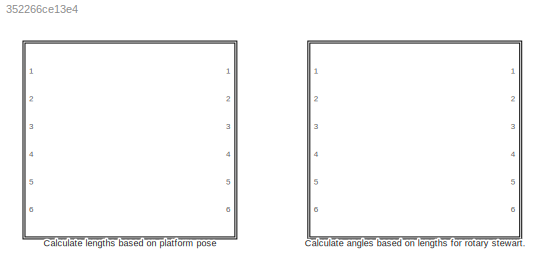
MODEL slx_352266ce13e4
KIND model
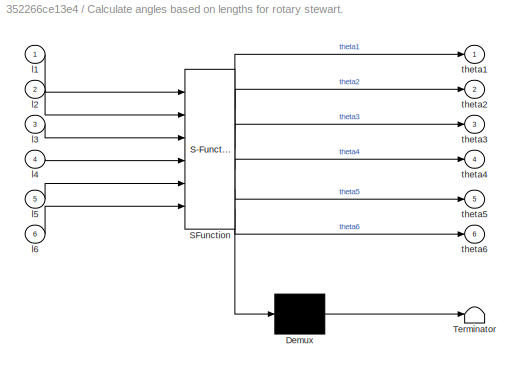
BLOCK [SubSystem]  Calculate angles based on lengths for rotary stewart.
  ErrorFcn = Stateflow.Translate.translate
  PermitHierarchicalResolution = ExplicitOnly
  Ports = [6, 6]
  RequestExecContextInheritance = off
  SFBlockType = MATLAB Function
  TreatAsAtomicUnit = on
BLOCK [Demux]  Calculate angles based on lengths for rotary stewart./ Demux 
  Outputs = 1
  Ports = [1, 1]
BLOCK [S-Function]  Calculate angles based on lengths for rotary stewart./ SFunction 
  EnableBusSupport = off
  FunctionName = sf_sfun
  PortCounts = [6 7]
  Ports = [6, 7]
  Tag = Stateflow S-Function userdefined_funtion_test 2
BLOCK [Terminator]  Calculate angles based on lengths for rotary stewart./ Terminator 
BLOCK [Inport]  Calculate angles based on lengths for rotary stewart./l1
  IconDisplay = Port number
BLOCK [Inport]  Calculate angles based on lengths for rotary stewart./l2
  IconDisplay = Port number
  Port = 2
BLOCK [Inport]  Calculate angles based on lengths for rotary stewart./l3
  IconDisplay = Port number
  Port = 3
BLOCK [Inport]  Calculate angles based on lengths for rotary stewart./l4
  IconDisplay = Port number
  Port = 4
BLOCK [Inport]  Calculate angles based on lengths for rotary stewart./l5
  IconDisplay = Port number
  Port = 5
BLOCK [Inport]  Calculate angles based on lengths for rotary stewart./l6
  IconDisplay = Port number
  Port = 6
BLOCK [Outport]  Calculate angles based on lengths for rotary stewart./theta1
  IconDisplay = Port number
BLOCK [Outport]  Calculate angles based on lengths for rotary stewart./theta2
  IconDisplay = Port number
  Port = 2
BLOCK [Outport]  Calculate angles based on lengths for rotary stewart./theta3
  IconDisplay = Port number
  Port = 3
BLOCK [Outport]  Calculate angles based on lengths for rotary stewart./theta4
  IconDisplay = Port number
  Port = 4
BLOCK [Outport]  Calculate angles based on lengths for rotary stewart./theta5
  IconDisplay = Port number
  Port = 5
BLOCK [Outport]  Calculate angles based on lengths for rotary stewart./theta6
  IconDisplay = Port number
  Port = 6
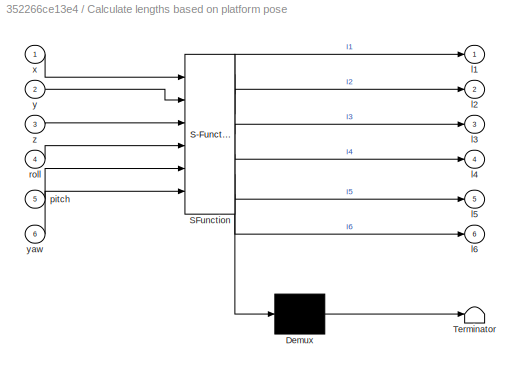
BLOCK [SubSystem] Calculate lengths based on platform pose
  ErrorFcn = Stateflow.Translate.translate
  PermitHierarchicalResolution = ExplicitOnly
  Ports = [6, 6]
  RequestExecContextInheritance = off
  SFBlockType = MATLAB Function
  TreatAsAtomicUnit = on
BLOCK [Demux] Calculate lengths based on platform pose/ Demux 
  Outputs = 1
  Ports = [1, 1]
BLOCK [S-Function] Calculate lengths based on platform pose/ SFunction 
  EnableBusSupport = off
  FunctionName = sf_sfun
  PortCounts = [6 7]
  Ports = [6, 7]
  Tag = Stateflow S-Function userdefined_funtion_test 1
BLOCK [Terminator] Calculate lengths based on platform pose/ Terminator 
BLOCK [Outport] Calculate lengths based on platform pose/l1
  IconDisplay = Port number
BLOCK [Outport] Calculate lengths based on platform pose/l2
  IconDisplay = Port number
  Port = 2
BLOCK [Outport] Calculate lengths based on platform pose/l3
  IconDisplay = Port number
  Port = 3
BLOCK [Outport] Calculate lengths based on platform pose/l4
  IconDisplay = Port number
  Port = 4
BLOCK [Outport] Calculate lengths based on platform pose/l5
  IconDisplay = Port number
  Port = 5
BLOCK [Outport] Calculate lengths based on platform pose/l6
  IconDisplay = Port number
  Port = 6
BLOCK [Inport] Calculate lengths based on platform pose/pitch
  IconDisplay = Port number
  Port = 5
BLOCK [Inport] Calculate lengths based on platform pose/roll
  IconDisplay = Port number
  Port = 4
BLOCK [Inport] Calculate lengths based on platform pose/x
  IconDisplay = Port number
BLOCK [Inport] Calculate lengths based on platform pose/y
  IconDisplay = Port number
  Port = 2
BLOCK [Inport] Calculate lengths based on platform pose/yaw
  IconDisplay = Port number
  Port = 6
BLOCK [Inport] Calculate lengths based on platform pose/z
  IconDisplay = Port number
  Port = 3
CHART Calculate lengths based on platform pose states=1 transitions=1
  STATE_LABEL 'eML_blk_kernel()'
  STATE_LABEL 'SCRIPT:\nfunction [l1,l2,l3,l4,l5,l6] = fcn(x,y,z,roll,pitch,yaw)\n%#codegen\n\nl1=0;\nl2=0;\nl3=0;\nl4=0;\nl5=0;\nl6=0;\nend'
CHART 
Calculate angles based on lengths for rotary stewart. states=1 transitions=1
  STATE_LABEL 'eML_blk_kernel()'
  STATE_LABEL 'SCRIPT:\nfunction [theta1,theta2,theta3,theta4,theta5,theta6] = fcn(l1,l2,l3,l4,l5,l6)\n%#codegen\n\nl1=0;\nl2=0;\nl3=0;\nl4=0;\nl5=0;\nl6=0;\nend'
